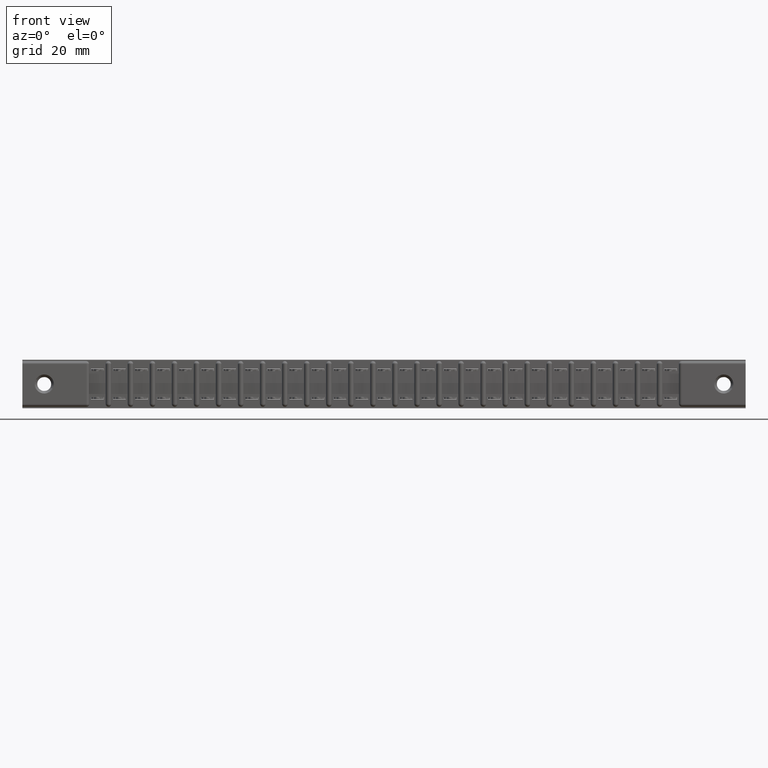
[diagram: clean part render]
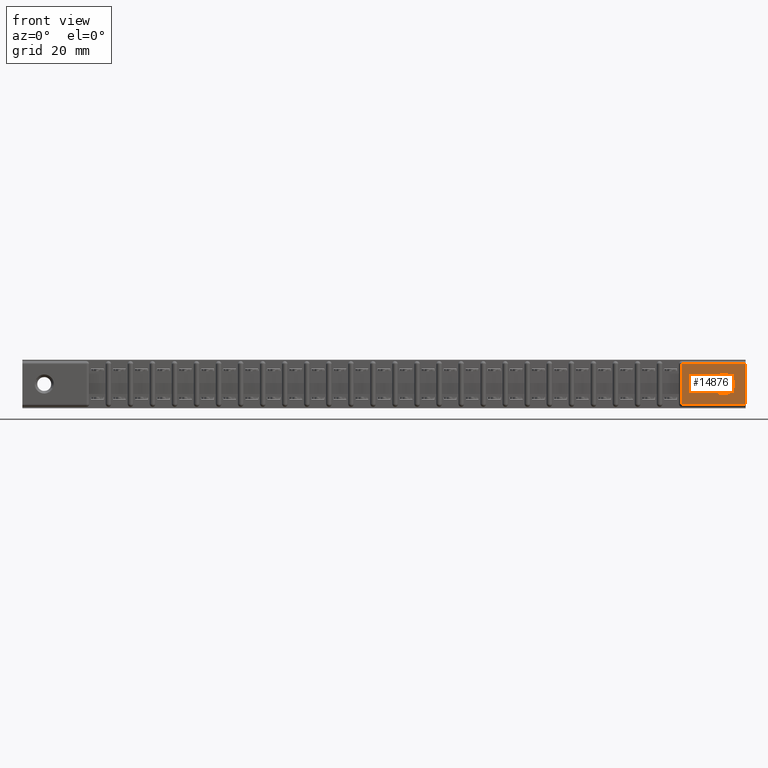
[diagram: same view with one face highlighted and labeled with its STEP entity id]
A machine part, front view. The second image highlights one B-rep face of the part: STEP entity #14876.
In plain terms, the highlighted planar face has unit normal (0, -1, 0).
Its self-contained STEP definition (entity closure, byte-faithful):
#178 = VECTOR ( 'NONE', #15296, 39.37007874015748143 ) ;
#526 = DIRECTION ( 'NONE',  ( 0.0000000000000000000, 0.0000000000000000000, -1.000000000000000000 ) ) ;
#1486 = ORIENTED_EDGE ( 'NONE', *, *, #15949, .F. ) ;
#1601 = VECTOR ( 'NONE', #526, 39.37007874015748143 ) ;
#2887 = DIRECTION ( 'NONE',  ( 1.000000000000000000, -0.0000000000000000000, -0.0000000000000000000 ) ) ;
#3438 = DIRECTION ( 'NONE',  ( 0.0000000000000000000, -0.0000000000000000000, -1.000000000000000000 ) ) ;
#3574 = PLANE ( 'NONE',  #25855 ) ;
#4453 = AXIS2_PLACEMENT_3D ( 'NONE', #8035, #7758, #9940 ) ;
#4860 = LINE ( 'NONE', #9247, #178 ) ;
#5272 = VECTOR ( 'NONE', #19443, 39.37007874015748143 ) ;
#5488 = FACE_OUTER_BOUND ( 'NONE', #7663, .T. ) ;
#6021 = ORIENTED_EDGE ( 'NONE', *, *, #15956, .F. ) ;
#7075 = EDGE_LOOP ( 'NONE', ( #1486, #6021 ) ) ;
#7663 = EDGE_LOOP ( 'NONE', ( #18257, #8858, #15215, #15142 ) ) ;
#7758 = DIRECTION ( 'NONE',  ( 0.0000000000000000000, -1.000000000000000000, 0.0000000000000000000 ) ) ;
#7965 = CARTESIAN_POINT ( 'NONE',  ( 5.118000000000000327, 0.0000000000000000000, -0.03000000000000008910 ) ) ;
#8035 = CARTESIAN_POINT ( 'NONE',  ( 4.963000000000000966, 0.0000000000000000000, -0.1714999999999994862 ) ) ;
#8858 = ORIENTED_EDGE ( 'NONE', *, *, #14773, .T. ) ;
#9247 = CARTESIAN_POINT ( 'NONE',  ( 4.664999999999999147, 0.0000000000000000000, -0.3130000000000000560 ) ) ;
#9395 = CARTESIAN_POINT ( 'NONE',  ( 4.963000000000000966, 0.0000000000000000000, -0.2494999999999995277 ) ) ;
#9940 = DIRECTION ( 'NONE',  ( 0.0000000000000000000, 0.0000000000000000000, 1.000000000000000000 ) ) ;
#10161 = AXIS2_PLACEMENT_3D ( 'NONE', #12004, #18589, #26912 ) ;
#10532 = VERTEX_POINT ( 'NONE', #9395 ) ;
#11188 = CARTESIAN_POINT ( 'NONE',  ( 5.118000000000000327, 0.0000000000000000000, 0.0000000000000000000 ) ) ;
#11421 = CARTESIAN_POINT ( 'NONE',  ( 4.664999999999999147, 0.0000000000000000000, -0.3130000000000000560 ) ) ;
#11428 = VECTOR ( 'NONE', #2887, 39.37007874015748143 ) ;
#12004 = CARTESIAN_POINT ( 'NONE',  ( 4.963000000000000966, 0.0000000000000000000, -0.1714999999999994862 ) ) ;
#12957 = VERTEX_POINT ( 'NONE', #17038 ) ;
#13127 = VERTEX_POINT ( 'NONE', #11421 ) ;
#13247 = LINE ( 'NONE', #11188, #1601 ) ;
#13307 = LINE ( 'NONE', #21658, #11428 ) ;
#13581 = CARTESIAN_POINT ( 'NONE',  ( 0.0000000000000000000, 0.0000000000000000000, -0.3430000000000000271 ) ) ;
#14773 = EDGE_CURVE ( 'NONE', #13127, #21974, #13307, .T. ) ;
#14876 = ADVANCED_FACE ( 'NONE', ( #26316, #5488 ), #3574, .T. ) ;
#15142 = ORIENTED_EDGE ( 'NONE', *, *, #17004, .T. ) ;
#15215 = ORIENTED_EDGE ( 'NONE', *, *, #24222, .F. ) ;
#15296 = DIRECTION ( 'NONE',  ( -0.0000000000000000000, -0.0000000000000000000, -1.000000000000000000 ) ) ;
#15949 = EDGE_CURVE ( 'NONE', #10532, #12957, #19338, .T. ) ;
#15956 = EDGE_CURVE ( 'NONE', #12957, #10532, #21965, .T. ) ;
#16406 = CARTESIAN_POINT ( 'NONE',  ( 4.665000000000000924, 0.0000000000000000000, -0.03000000000000008910 ) ) ;
#17004 = EDGE_CURVE ( 'NONE', #22413, #17773, #25474, .T. ) ;
#17038 = CARTESIAN_POINT ( 'NONE',  ( 4.963000000000000966, 0.0000000000000000000, -0.09349999999999945854 ) ) ;
#17773 = VERTEX_POINT ( 'NONE', #16406 ) ;
#18257 = ORIENTED_EDGE ( 'NONE', *, *, #21263, .T. ) ;
#18589 = DIRECTION ( 'NONE',  ( 0.0000000000000000000, -1.000000000000000000, 0.0000000000000000000 ) ) ;
#19338 = CIRCLE ( 'NONE', #4453, 0.07800000000000002764 ) ;
#19443 = DIRECTION ( 'NONE',  ( -1.000000000000000000, 0.0000000000000000000, 0.0000000000000000000 ) ) ;
#20867 = CARTESIAN_POINT ( 'NONE',  ( 5.118000000000000327, 0.0000000000000000000, -0.3130000000000001115 ) ) ;
#21263 = EDGE_CURVE ( 'NONE', #17773, #13127, #4860, .T. ) ;
#21658 = CARTESIAN_POINT ( 'NONE',  ( 5.118000000000000327, 0.0000000000000000000, -0.3130000000000001115 ) ) ;
#21933 = DIRECTION ( 'NONE',  ( 0.0000000000000000000, -1.000000000000000000, 0.0000000000000000000 ) ) ;
#21965 = CIRCLE ( 'NONE', #10161, 0.07800000000000002764 ) ;
#21974 = VERTEX_POINT ( 'NONE', #20867 ) ;
#22413 = VERTEX_POINT ( 'NONE', #7965 ) ;
#24222 = EDGE_CURVE ( 'NONE', #22413, #21974, #13247, .T. ) ;
#25474 = LINE ( 'NONE', #25600, #5272 ) ;
#25600 = CARTESIAN_POINT ( 'NONE',  ( 0.0000000000000000000, 0.0000000000000000000, -0.03000000000000008910 ) ) ;
#25855 = AXIS2_PLACEMENT_3D ( 'NONE', #13581, #21933, #3438 ) ;
#26316 = FACE_BOUND ( 'NONE', #7075, .T. ) ;
#26912 = DIRECTION ( 'NONE',  ( 0.0000000000000000000, 0.0000000000000000000, 1.000000000000000000 ) ) ;